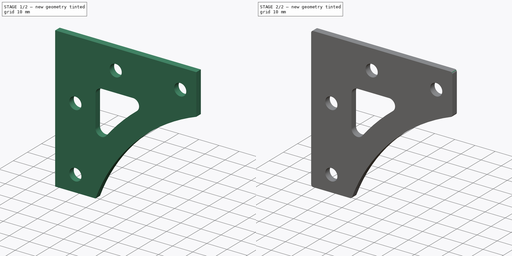
[diagram: build sequence overview — one tinted view per stage of 2, left to right]
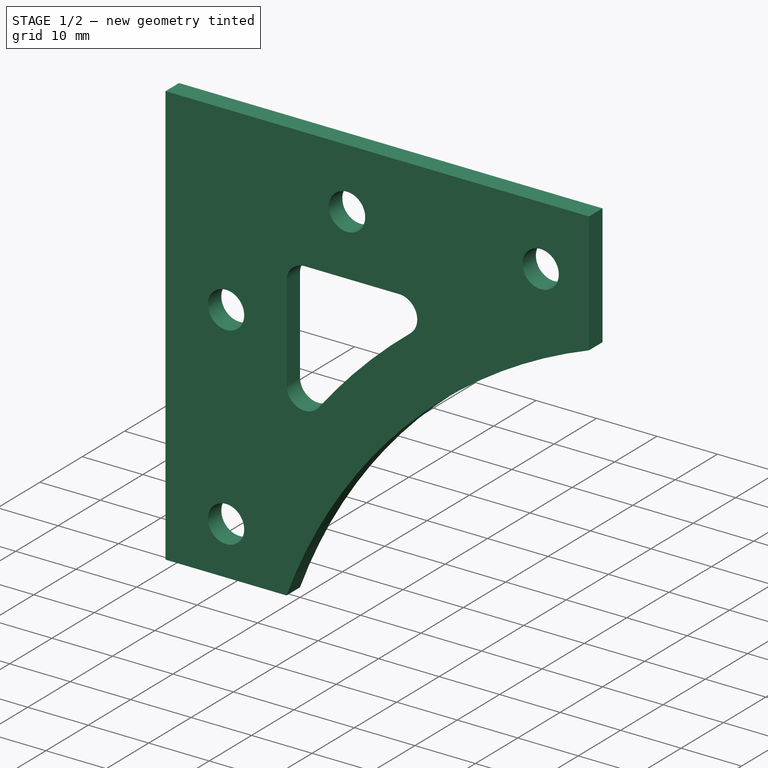
[diagram: stage 1 of 2 — iso view after this stage's code; geometry added in this stage tinted green]
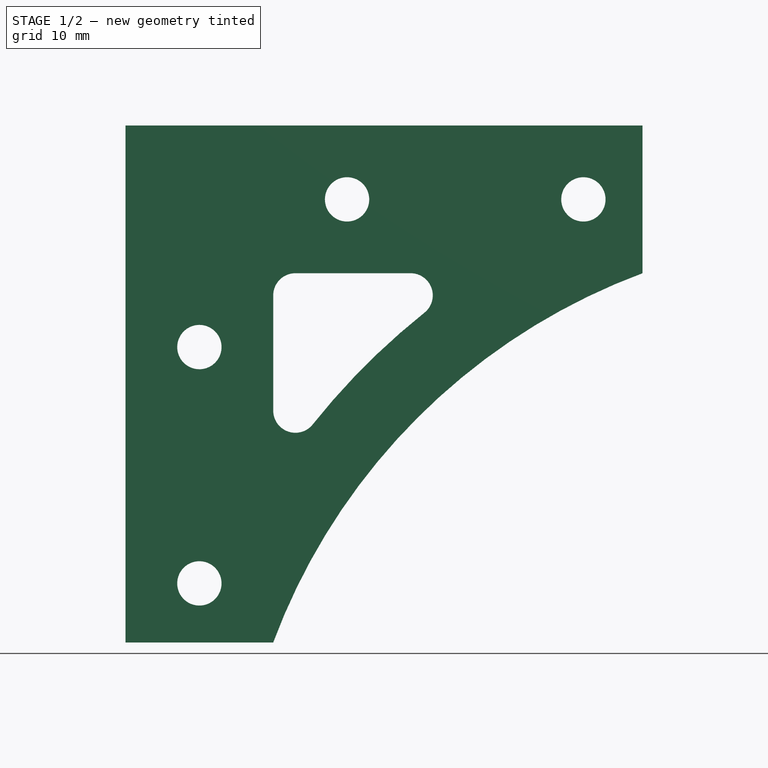
[diagram: stage 1 of 2 — front view after this stage's code; geometry added in this stage tinted green]
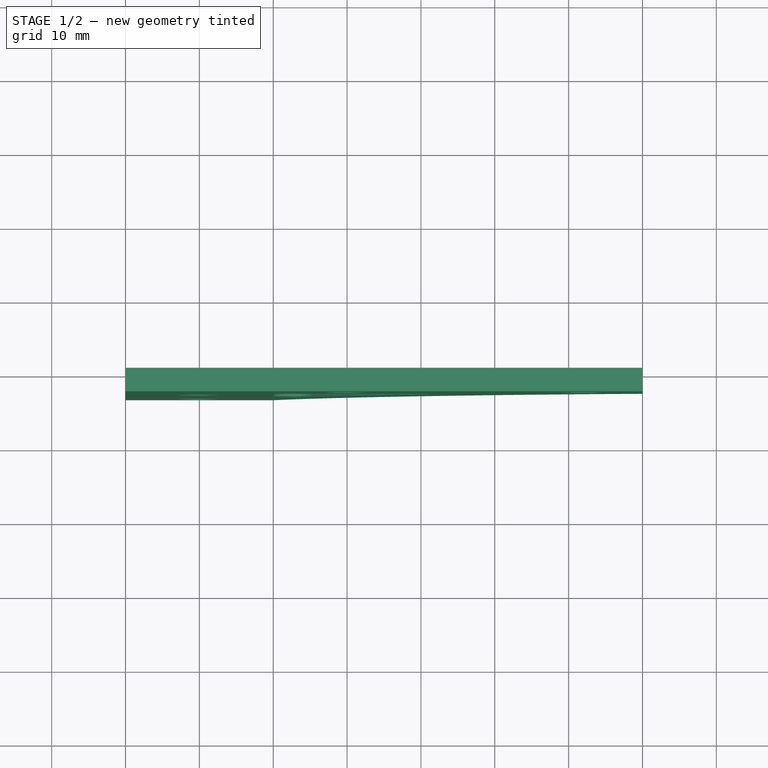
[diagram: stage 1 of 2 — top view after this stage's code; geometry added in this stage tinted green]
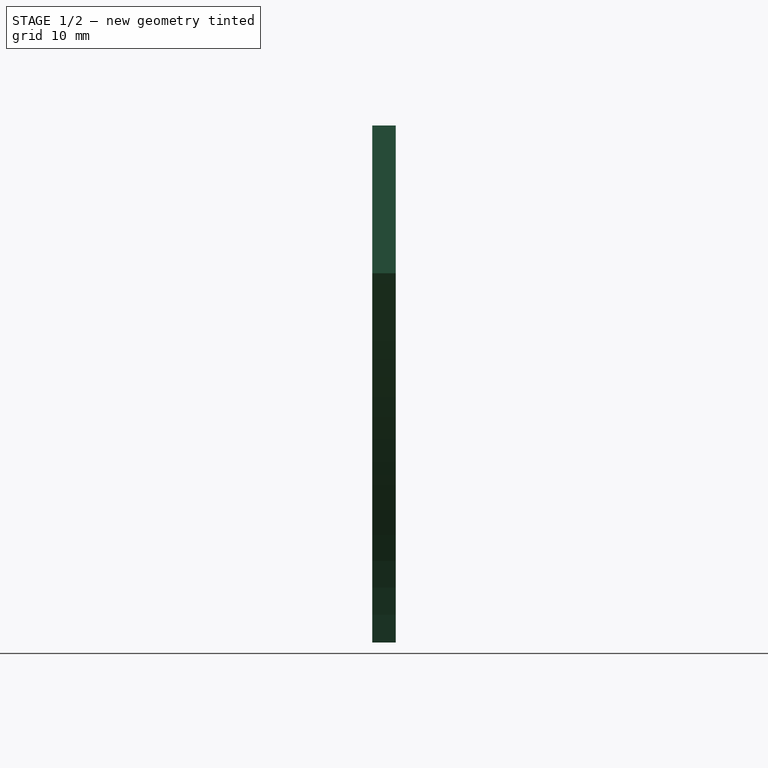
[diagram: stage 1 of 2 — right view after this stage's code; geometry added in this stage tinted green]
FCSTD DOCUMENT  (FreeCAD 0.17R12018 (Git))
Label: corner_bracket_PP-MP0106_revC
License: All rights reserved
LicenseURL: http://en.wikipedia.org/wiki/All_rights_reserved
objects: Drawing::FeatureView×46, Drawing::FeatureViewPart×3, PartDesign::Fillet×2, Drawing::FeaturePage×2, Sketcher::SketchObject×1, PartDesign::Pad×1
note: 5 computed .brp shape members not serialized (recipe doc carries the construction recipe); baked Part::Feature solids carry a one-line shape summary decoded from their .brp

FEATURE [Sketcher::SketchObject] Sketch
  MapMode = 5
  Placement = pos=(0,0,0) rot=(1,0,0;1.5708rad)
  sketch-geometry (15):
    g0: LineSegment StartX=0 StartY=0 StartZ=0 EndX=20 EndY=0 EndZ=0
    g1: LineSegment StartX=70 StartY=50 StartZ=0 EndX=70 EndY=70 EndZ=0
    g2: LineSegment StartX=70 StartY=70 StartZ=0 EndX=0 EndY=70 EndZ=0
    g3: LineSegment StartX=0 StartY=70 StartZ=0 EndX=0 EndY=0 EndZ=0
    g4: LineSegment StartX=47.8932 StartY=50 StartZ=0 EndX=20 EndY=50 EndZ=0
    g5: LineSegment StartX=20 StartY=50 StartZ=0 EndX=20 EndY=22.1068 EndZ=0
    g6: LineSegment [constr] StartX=0 StartY=70 StartZ=0 EndX=39.554 EndY=30.446 EndZ=0
    g7: ArcOfCircle CenterX=99.658 CenterY=-29.658 CenterZ=0 NormalX=0 NormalY=0 NormalZ=1 Radius=95 StartAngle=2.14706 EndAngle=2.56533
    g8: ArcOfCircle CenterX=99.658 CenterY=-29.658 CenterZ=0 NormalX=0 NormalY=0 NormalZ=1 Radius=85 StartAngle=1.92721 EndAngle=2.78518
    g9: LineSegment [constr] StartX=10 StartY=0 StartZ=0 EndX=10 EndY=60 EndZ=0
    g10: LineSegment [constr] StartX=10 StartY=60 StartZ=0 EndX=70 EndY=60 EndZ=0
    g11: Circle CenterX=10 CenterY=40 CenterZ=0 NormalX=0 NormalY=0 NormalZ=1 Radius=3
    g12: Circle CenterX=10 CenterY=8 CenterZ=0 NormalX=0 NormalY=0 NormalZ=1 Radius=3
    g13: Circle CenterX=30 CenterY=60 CenterZ=0 NormalX=0 NormalY=0 NormalZ=1 Radius=3
    g14: Circle CenterX=62 CenterY=60 CenterZ=0 NormalX=0 NormalY=0 NormalZ=1 Radius=3
  constraints (47):
    c: Coincident(g1,g2)
    c: Coincident(g2,g3)
    c: Coincident(g3,g0)
    c: Horizontal(g0)
    c: Horizontal(g2)
    c: Vertical(g1)
    c: Vertical(g3)
    c: Distance(g3) = 70
    c: Coincident(g0,g-1)
    c: DistanceX(g-1,g5) = 20
    c: Vertical(g5)
    c: Coincident(g4,g5)
    c: DistanceY(g2,g4) = -20
    c: Horizontal(g4)
    c: Coincident(g2,g6)
    c: Angle(g3,g6) = 0.785398
    c: DistanceX(g1,g2) = -70
    c: Coincident(g4,g7)
    c: Coincident(g5,g7)
    c: Coincident(g7,g8)
    c: PointOnObject(g6,g8)
    c: Coincident(g8,g1)
    c: Coincident(g8,g0)
    c: DistanceY(g1,g1) = -20
    c: DistanceX(g-1,g0) = 20
    c: Radius(g8) = 85
    c: Radius(g7) = 95
    c: Vertical(g9)
    c: Horizontal(g10)
    c: DistanceX(g-1,g9) = 10
    c: DistanceY(g10,g2) = 10
    c: PointOnObject(g10,g9)
    c: Coincident(g9,g10)
    c: PointOnObject(g10,g1)
    c: PointOnObject(g9,g0)
    c: Radius(g11) = 3
    c: Equal(g11,g12)
    c: Equal(g12,g14)
    c: Equal(g14,g13)
    c: PointOnObject(g11,g9)
    c: PointOnObject(g13,g10)
    c: PointOnObject(g14,g10)
    c: PointOnObject(g12,g9)
    c: DistanceY(g2,g11) = -30
    c: DistanceY(g11,g12) = -32
    c: DistanceX(g13,g2) = -30
    c: DistanceX(g13,g14) = 32
FEATURE [PartDesign::Pad] Pad
  Length = 3.175
  Length2 = 100
  Placement = pos=(0,0,0) rot=(1,0,0;1.5708rad)
  Profile = -> Sketch
  Type = 0
FEATURE [PartDesign::Fillet] Fillet
  Base = -> Pad [Edge20,Edge16,Edge17]
  Placement = pos=(0,0,0) rot=(1,0,0;1.5708rad)
  Radius = 3
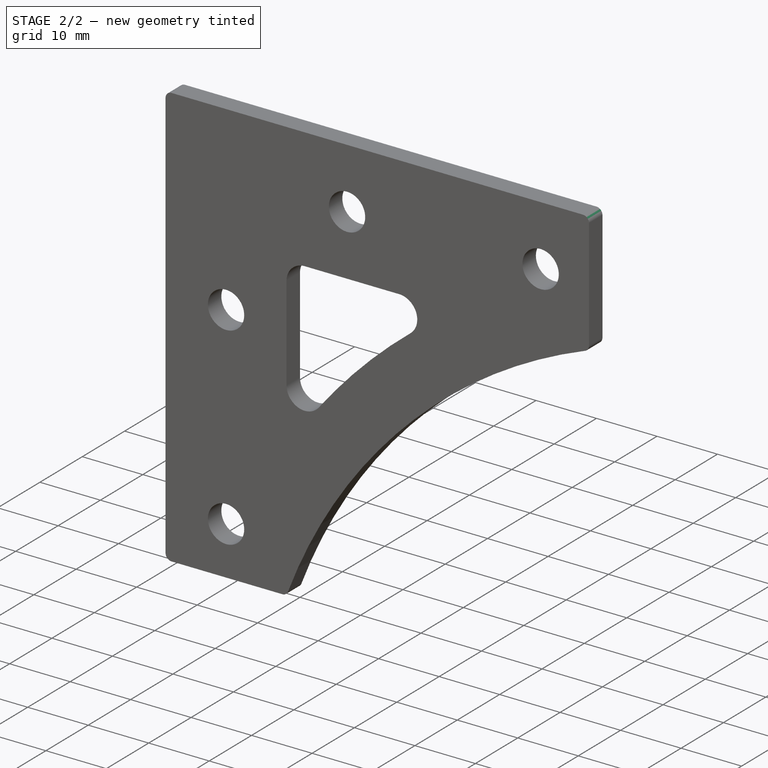
[diagram: stage 2 of 2 — iso view after this stage's code; geometry added in this stage tinted green]
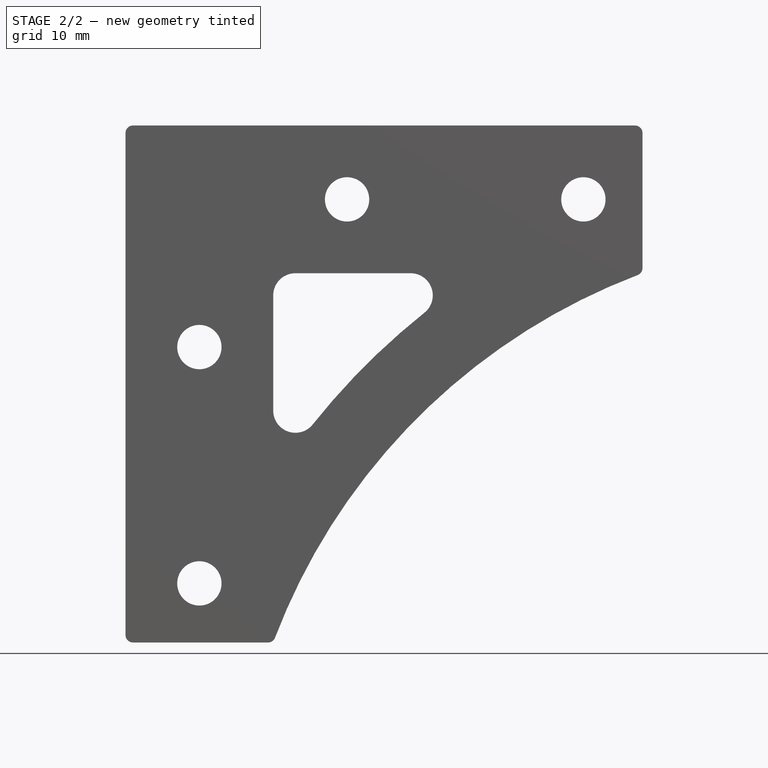
[diagram: stage 2 of 2 — front view after this stage's code; geometry added in this stage tinted green]
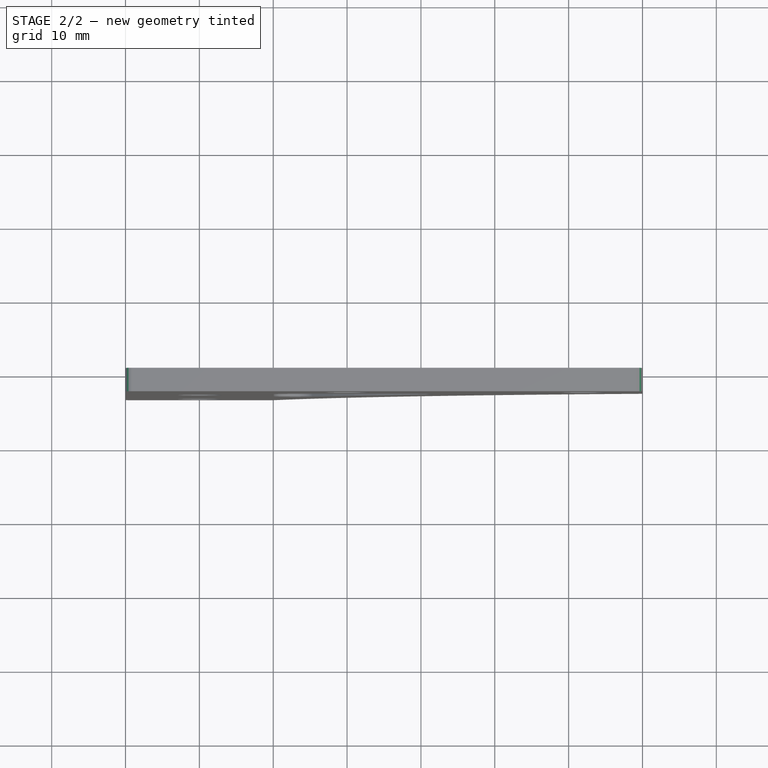
[diagram: stage 2 of 2 — top view after this stage's code; geometry added in this stage tinted green]
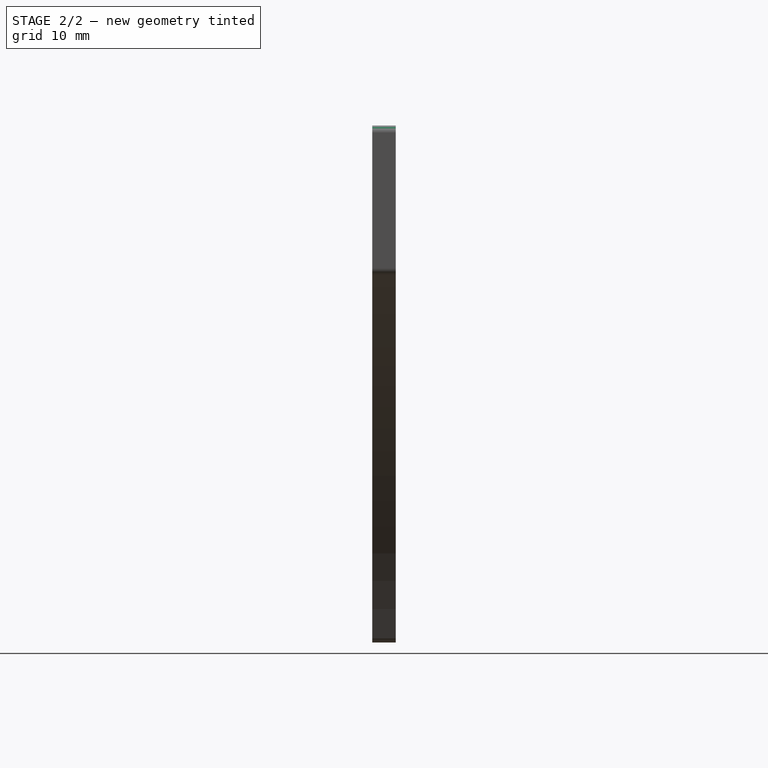
[diagram: stage 2 of 2 — right view after this stage's code; geometry added in this stage tinted green]
FEATURE [PartDesign::Fillet] Fillet001
  Base = -> Fillet [Edge37,Edge38,Edge41,Edge40,Edge39]
  Placement = pos=(0,0,0) rot=(1,0,0;1.5708rad)
  Radius = 1
FEATURE [Drawing::FeatureViewPart] Ortho  label="Ortho_0_0"
  Direction = (0,1,0)
  HiddenWidth = 0.15
  LineWidth = 0.35
  Rotation = 90
  ShowHiddenLines = false
  ShowSmoothLines = false
  Source = -> Fillet001
  Tolerance = 0.05
  ViewResult = <g id="Ortho_0_0"\n   transform="rotate(90,40,40) translate(40,40) scale(1,1)"\n  >\n<g   stroke="rgb(0, 0, 0)"\n   stroke-width="0.35"\n   stroke-linecap="butt"\n   stroke-linejoin="miter"\n   fill="none"\n   transform="scale(1,-1)"\n  >\n<path id= "1" d=" M 50.6917 70 L 69 70 " />\n<path d="M50.6917 70 A1 1 0 0 1 49.7574 69.3565" /><path d="M69 70 A1 1 0 0 0 70 69" /><path d="M49.7574 69.3565 A85 85 0 0 0 0.643511 20.2426" /><path id= "5" d=" M 70 69 L 70 1 " />\n<path d="M0 19.3083 A1 1 0 0 0 0.643511 20.2426" /><path d="M70 1 A1 1 0 0 0 69 -2.22045e-16" /><path id= "8" d=" M 0 1 L 0 19.3083 " />\n<path id= "9" d=" M 69 0 L 1 0 " />\n<path d="M1 -2.22045e-16 A1 1 0 0 0 -2.22045e-16 1" /><path id= "11" d=" M 50 38.6044 L 50 23 " />\n<path d="M50 38.6044 A3 3 0 0 1 44.6533 40.4734" /><path d="M50 23 A3 3 0 0 0 47 20" /><path d="M44.6533 40.4734 A95 95 0 0 0 29.5266 25.3467" /><path id= "15" d=" M 47 20 L 31.3956 20 " />\n<path d="M31.3956 20 A3 3 0 0 0 29.5266 25.3467" /><circle cx ="60" cy ="62" r ="3" /><circle cx ="60" cy ="30" r ="3" /><circle cx ="8" cy ="10" r ="3" /><circle cx ="40" cy ="10" r ="3" /></g>\n</g>
  Visible = true
  X = 40
  Y = 40
FEATURE [Drawing::FeatureViewPart] Ortho001  label="Ortho_1_0"
  Direction = (1,0,0)
  HiddenWidth = 0.15
  LineWidth = 0.35
  Rotation = 90
  ShowHiddenLines = false
  ShowSmoothLines = false
  Source = -> Fillet001
  Tolerance = 0.05
  ViewResult = <blob: 3638 chars omitted>
  Visible = true
  X = 160
  Y = 40
FEATURE [Drawing::FeatureViewPart] View
  Direction = (1,1,1)
  HiddenWidth = 0.15
  LineWidth = 0.35
  Rotation = 0
  Scale = 0.75
  ShowHiddenLines = false
  ShowSmoothLines = false
  Source = -> Fillet001
  Tolerance = 0.05
  ViewResult = <blob: 4070 chars omitted>
  Visible = true
  X = 50
  Y = 160
FEATURE [Drawing::FeatureView] centerLines001
  Rotation = 0
  ViewResult = <g transform="scale(1.000000,1.000000)" stroke="rgb(0,0,255)"  stroke-width="0.300000" > <path d="M 50.000000,80.000000 L 50.000000,78.000000 M 50.000000,76.000000 L 50.000000,75.000000 "/>\n<path d="M 50.000000,80.000000 L 52.000000,80.000000 M 54.000000,80.000000 L 55.000000,80.000000 "/>\n<path d="M 50.000000,80.000000 L 50.000000,82.000000 M 50.000000,84.000000 L 50.000000,85.000000 "/>\n<path d="M 50.000000,80.000000 L 48.000000,80.000000 M 46.000000,80.000000 L 45.000000,80.000000 "/> </g> 
  Visible = true
  X = 0
  Y = 0
FEATURE [Drawing::FeatureView] centerLines002
  Rotation = 0
  ViewResult = <g transform="scale(1.000000,1.000000)" stroke="rgb(0,0,255)"  stroke-width="0.300000" > <path d="M 50.000000,48.000000 L 50.000000,50.000000 "/>\n<path d="M 50.000000,48.000000 L 52.000000,48.000000 M 54.000000,48.000000 L 55.000000,48.000000 "/>\n<path d="M 50.000000,48.000000 L 50.000000,46.000000 "/>\n<path d="M 50.000000,48.000000 L 48.000000,48.000000 M 46.000000,48.000000 L 45.000000,48.000000 "/> </g> 
  Visible = true
  X = 0
  Y = 0
FEATURE [Drawing::FeatureView] centerLines003
  Rotation = 0
  ViewResult = <g transform="scale(1.000000,1.000000)" stroke="rgb(0,0,255)"  stroke-width="0.300000" > <path d="M 70.000000,100.000000 L 70.000000,102.000000 M 70.000000,104.000000 L 70.000000,105.000000 "/>\n<path d="M 70.000000,100.000000 L 72.000000,100.000000 M 74.000000,100.000000 L 75.000000,100.000000 "/>\n<path d="M 70.000000,100.000000 L 70.000000,98.000000 M 70.000000,96.000000 L 70.000000,95.000000 "/>\n<path d="M 70.000000,100.000000 L 68.000000,100.000000 M 66.000000,100.000000 L 65.000000,100.000000 "/> </g> 
  Visible = true
  X = 0
  Y = 0
FEATURE [Drawing::FeatureView] centerLines004
  Rotation = 0
  ViewResult = <g transform="scale(1.000000,1.000000)" stroke="rgb(0,0,255)"  stroke-width="0.300000" > <path d="M 102.000000,100.000000 L 102.000000,102.000000 M 102.000000,104.000000 L 102.000000,105.000000 "/>\n<path d="M 102.000000,100.000000 L 100.000000,100.000000 M 98.000000,100.000000 L 95.000000,100.000000 "/>\n<path d="M 102.000000,100.000000 L 102.000000,98.000000 M 102.000000,96.000000 L 102.000000,95.000000 "/>\n<path d="M 102.000000,100.000000 L 104.000000,100.000000 "/> </g> 
  Visible = true
  X = 0
  Y = 0
FEATURE [Drawing::FeatureView] centerLines005
  Rotation = 0
  ViewResult = <g transform="scale(1.000000,1.000000)" stroke="rgb(0,0,255)"  stroke-width="0.300000" > <path d="M 78.604443,87.000000 L 78.604443,85.000000 "/>\n<path d="M 78.604443,87.000000 L 80.000000,87.000000 "/>\n<path d="M 78.604443,87.000000 L 78.604443,89.000000 "/>\n<path d="M 78.604443,87.000000 L 76.604443,87.000000 "/> </g> 
  Visible = true
  X = 0
  Y = 0
FEATURE [Drawing::FeatureView] centerLines006
  Rotation = 0
  ViewResult = <g transform="scale(1.000000,1.000000)" stroke="rgb(0,0,255)"  stroke-width="0.300000" > <path d="M 63.000000,87.000000 L 63.000000,89.000000 "/>\n<path d="M 63.000000,87.000000 L 65.000000,87.000000 "/>\n<path d="M 63.000000,87.000000 L 63.000000,85.000000 "/>\n<path d="M 63.000000,87.000000 L 61.000000,87.000000 "/> </g> 
  Visible = true
  X = 0
  Y = 0
FEATURE [Drawing::FeatureView] centerLines007
  Rotation = 0
  ViewResult = <g transform="scale(1.000000,1.000000)" stroke="rgb(0,0,255)"  stroke-width="0.300000" > <path d="M 63.000000,71.395557 L 63.000000,73.395557 "/>\n<path d="M 63.000000,71.395557 L 61.000000,71.395557 "/>\n<path d="M 63.000000,71.395557 L 63.000000,70.000000 "/>\n<path d="M 63.000000,71.395557 L 65.000000,71.395557 "/> </g> 
  Visible = true
  X = 0
  Y = 0
FEATURE [Drawing::FeatureView] centerLines008
  Rotation = 0
  ViewResult = <g transform="scale(1.000000,1.000000)" stroke="rgb(0,0,255)"  stroke-width="0.300000" > <path d="M 139.658056,10.341937 L 139.658056,12.341937 M 139.658056,14.341937 L 139.658056,20.000000 "/>\n<path d="M 139.658056,10.341937 L 137.658056,10.341937 M 135.658056,10.341937 L 130.000000,10.341937 "/>\n<path d="M 139.658056,10.341937 L 139.658056,8.341937 M 139.658056,6.341937 L 139.658056,5.000000 "/>\n<path d="M 139.658056,10.341937 L 141.658056,10.341937 M 143.658056,10.341937 L 145.000000,10.341937 "/> </g> 
  Visible = true
  X = 0
  Y = 0
FEATURE [Drawing::FeatureView] dim001
  Rotation = 0
  ViewResult = <g> \n  <line x1="40.000000" y1="111.000000" x2="40.000000" y2="116.000000" style="stroke:rgb(0,0,255);stroke-width:0.20" />\n<line x1="50.000000" y1="85.000000" x2="50.000000" y2="116.000000" style="stroke:rgb(0,0,255);stroke-width:0.20" />\n<line x1="40.000000" y1="115.000000" x2="50.000000" y2="115.000000" style="stroke:rgb(0,0,255);stroke-width:0.20" /> \n  <polygon points="50.000000,115.000000 47.000000,114.250000 47.000000,115.000000 47.000000,115.750000" style="fill:rgb(0,0,255);stroke:rgb(0,0,255);stroke-width:0" /><polygon points="40.000000,115.000000 43.000000,115.750000 43.000000,115.000000 43.000000,114.250000" style="fill:rgb(0,0,255);stroke:rgb(0,0,255);stroke-width:0" /> \n  <text x="33.286909" y="116.091535" font-family="Verdana" font-size="3" fill="rgb(0,0,255)" text-anchor="middle"  >2X 10.0</text> </g>
  Visible = true
  X = 0
  Y = 0
FEATURE [Drawing::FeatureView] dim002
  Rotation = 0
  ViewResult = <g> \n  <line x1="40.000000" y1="111.000000" x2="40.000000" y2="121.000000" style="stroke:rgb(0,0,255);stroke-width:0.20" />\n<line x1="60.000000" y1="73.395600" x2="60.000000" y2="121.000000" style="stroke:rgb(0,0,255);stroke-width:0.20" />\n<line x1="40.000000" y1="120.000000" x2="60.000000" y2="120.000000" style="stroke:rgb(0,0,255);stroke-width:0.20" /> \n  <polygon points="60.000000,120.000000 57.000000,119.250000 57.000000,120.000000 57.000000,120.750000" style="fill:rgb(0,0,255);stroke:rgb(0,0,255);stroke-width:0" /><polygon points="40.000000,120.000000 43.000000,120.750000 43.000000,120.000000 43.000000,119.250000" style="fill:rgb(0,0,255);stroke:rgb(0,0,255);stroke-width:0" /> \n  <text x="49.970903" y="119.336904" font-family="Verdana" font-size="3" fill="rgb(0,0,255)" text-anchor="middle"  >2X 20.0</text> </g>
  Visible = true
  X = 0
  Y = 0
FEATURE [Drawing::FeatureView] dim003
  Rotation = 0
  ViewResult = <g> \n  <line x1="40.000000" y1="111.000000" x2="40.000000" y2="126.000000" style="stroke:rgb(0,0,255);stroke-width:0.20" />\n<line x1="63.000000" y1="91.000000" x2="63.000000" y2="126.000000" style="stroke:rgb(0,0,255);stroke-width:0.20" />\n<line x1="40.000000" y1="125.000000" x2="63.000000" y2="125.000000" style="stroke:rgb(0,0,255);stroke-width:0.20" /> \n  <polygon points="63.000000,125.000000 60.000000,124.250000 60.000000,125.000000 60.000000,125.750000" style="fill:rgb(0,0,255);stroke:rgb(0,0,255);stroke-width:0" /><polygon points="40.000000,125.000000 43.000000,125.750000 43.000000,125.000000 43.000000,124.250000" style="fill:rgb(0,0,255);stroke:rgb(0,0,255);stroke-width:0" /> \n  <text x="49.422257" y="124.660612" font-family="Verdana" font-size="3" fill="rgb(0,0,255)" text-anchor="middle"  >2X 23.0</text> </g>
  Visible = true
  X = 0
  Y = 0
FEATURE [Drawing::FeatureView] dim004
  Rotation = 0
  ViewResult = <g> \n  <line x1="40.000000" y1="111.000000" x2="40.000000" y2="131.000000" style="stroke:rgb(0,0,255);stroke-width:0.20" />\n<line x1="70.000000" y1="105.000000" x2="70.000000" y2="131.000000" style="stroke:rgb(0,0,255);stroke-width:0.20" />\n<line x1="40.000000" y1="130.000000" x2="70.000000" y2="130.000000" style="stroke:rgb(0,0,255);stroke-width:0.20" /> \n  <polygon points="70.000000,130.000000 67.000000,129.250000 67.000000,130.000000 67.000000,130.750000" style="fill:rgb(0,0,255);stroke:rgb(0,0,255);stroke-width:0" /><polygon points="40.000000,130.000000 43.000000,130.750000 43.000000,130.000000 43.000000,129.250000" style="fill:rgb(0,0,255);stroke:rgb(0,0,255);stroke-width:0" /> \n  <text x="47.815029" y="129.783650" font-family="Verdana" font-size="3" fill="rgb(0,0,255)" text-anchor="middle"  >30.0</text> </g>
  Visible = true
  X = 0
  Y = 0
FEATURE [Drawing::FeatureView] dim005
  Rotation = 0
  ViewResult = <g> \n  <line x1="40.000000" y1="111.000000" x2="40.000000" y2="136.000000" style="stroke:rgb(0,0,255);stroke-width:0.20" />\n<line x1="78.604443" y1="91.000000" x2="78.604443" y2="136.000000" style="stroke:rgb(0,0,255);stroke-width:0.20" />\n<line x1="40.000000" y1="135.000000" x2="78.604443" y2="135.000000" style="stroke:rgb(0,0,255);stroke-width:0.20" /> \n  <polygon points="78.604443,135.000000 75.604443,134.250000 75.604443,135.000000 75.604443,135.750000" style="fill:rgb(0,0,255);stroke:rgb(0,0,255);stroke-width:0" /><polygon points="40.000000,135.000000 43.000000,135.750000 43.000000,135.000000 43.000000,134.250000" style="fill:rgb(0,0,255);stroke:rgb(0,0,255);stroke-width:0" /> \n  <text x="48.015933" y="134.605334" font-family="Verdana" font-size="3" fill="rgb(0,0,255)" text-anchor="middle"  >38.6</text> </g>
  Visible = true
  X = 0
  Y = 0
FEATURE [Drawing::FeatureView] dim006
  Rotation = 0
  ViewResult = <g> \n  <line x1="40.000000" y1="111.000000" x2="40.000000" y2="141.000000" style="stroke:rgb(0,0,255);stroke-width:0.20" />\n<line x1="102.000000" y1="105.000000" x2="102.000000" y2="141.000000" style="stroke:rgb(0,0,255);stroke-width:0.20" />\n<line x1="40.000000" y1="140.000000" x2="102.000000" y2="140.000000" style="stroke:rgb(0,0,255);stroke-width:0.20" /> \n  <polygon points="102.000000,140.000000 99.000000,139.250000 99.000000,140.000000 99.000000,140.750000" style="fill:rgb(0,0,255);stroke:rgb(0,0,255);stroke-width:0" /><polygon points="40.000000,140.000000 43.000000,140.750000 43.000000,140.000000 43.000000,139.250000" style="fill:rgb(0,0,255);stroke:rgb(0,0,255);stroke-width:0" /> \n  <text x="48.015933" y="139.728373" font-family="Verdana" font-size="3" fill="rgb(0,0,255)" text-anchor="middle"  >62.0</text> </g>
  Visible = true
  X = 0
  Y = 0
FEATURE [Drawing::FeatureView] dim007
  Rotation = 0
  ViewResult = <g> \n  <line x1="40.000000" y1="111.000000" x2="40.000000" y2="146.000000" style="stroke:rgb(0,0,255);stroke-width:0.20" />\n<line x1="110.000000" y1="111.000000" x2="110.000000" y2="146.000000" style="stroke:rgb(0,0,255);stroke-width:0.20" />\n<line x1="40.000000" y1="145.000000" x2="110.000000" y2="145.000000" style="stroke:rgb(0,0,255);stroke-width:0.20" /> \n  <polygon points="110.000000,145.000000 107.000000,144.250000 107.000000,145.000000 107.000000,145.750000" style="fill:rgb(0,0,255);stroke:rgb(0,0,255);stroke-width:0" /><polygon points="40.000000,145.000000 43.000000,145.750000 43.000000,145.000000 43.000000,144.250000" style="fill:rgb(0,0,255);stroke:rgb(0,0,255);stroke-width:0" /> \n  <text x="47.714577" y="144.550056" font-family="Verdana" font-size="3" fill="rgb(0,0,255)" text-anchor="middle"  >70.0</text> </g>
  Visible = true
  X = 0
  Y = 0
FEATURE [Drawing::FeatureView] dim008
  Rotation = 0
  ViewResult = <g> \n  <line x1="39.000000" y1="110.000000" x2="34.000000" y2="110.000000" style="stroke:rgb(0,0,255);stroke-width:0.20" />\n<line x1="65.000000" y1="100.000000" x2="34.000000" y2="100.000000" style="stroke:rgb(0,0,255);stroke-width:0.20" />\n<line x1="35.000000" y1="110.000000" x2="35.000000" y2="100.000000" style="stroke:rgb(0,0,255);stroke-width:0.20" /> \n  <polygon points="35.000000,100.000000 34.250000,103.000000 35.000000,103.000000 35.750000,103.000000" style="fill:rgb(0,0,255);stroke:rgb(0,0,255);stroke-width:0" /><polygon points="35.000000,110.000000 35.750000,107.000000 35.000000,107.000000 34.250000,107.000000" style="fill:rgb(0,0,255);stroke:rgb(0,0,255);stroke-width:0" /> \n  <text x="33.928806" y="100.777723" font-family="Verdana" font-size="3" fill="rgb(0,0,255)" text-anchor="middle" transform="rotate(-90.000000 33.928806,100.777723)" >2X 10.0</text> </g>
  Visible = true
  X = 0
  Y = 0
FEATURE [Drawing::FeatureView] dim009
  Rotation = 0
  ViewResult = <g> \n  <line x1="39.000000" y1="110.000000" x2="29.000000" y2="110.000000" style="stroke:rgb(0,0,255);stroke-width:0.20" />\n<line x1="61.000000" y1="90.000000" x2="29.000000" y2="90.000000" style="stroke:rgb(0,0,255);stroke-width:0.20" />\n<line x1="30.000000" y1="110.000000" x2="30.000000" y2="90.000000" style="stroke:rgb(0,0,255);stroke-width:0.20" /> \n  <polygon points="30.000000,90.000000 29.250000,93.000000 30.000000,93.000000 30.750000,93.000000" style="fill:rgb(0,0,255);stroke:rgb(0,0,255);stroke-width:0" /><polygon points="30.000000,110.000000 30.750000,107.000000 30.000000,107.000000 29.250000,107.000000" style="fill:rgb(0,0,255);stroke:rgb(0,0,255);stroke-width:0" /> \n  <text x="29.343832" y="100.410925" font-family="Verdana" font-size="3" fill="rgb(0,0,255)" text-anchor="middle" transform="rotate(-90.000000 29.343832,100.410925)" >2X 20.0</text> </g>
  Visible = true
  X = 0
  Y = 0
FEATURE [Drawing::FeatureView] dim010
  Rotation = 0
  ViewResult = <g> \n  <line x1="39.000000" y1="110.000000" x2="24.000000" y2="110.000000" style="stroke:rgb(0,0,255);stroke-width:0.20" />\n<line x1="59.000000" y1="87.000000" x2="24.000000" y2="87.000000" style="stroke:rgb(0,0,255);stroke-width:0.20" />\n<line x1="25.000000" y1="110.000000" x2="25.000000" y2="87.000000" style="stroke:rgb(0,0,255);stroke-width:0.20" /> \n  <polygon points="25.000000,87.000000 24.250000,90.000000 25.000000,90.000000 25.750000,90.000000" style="fill:rgb(0,0,255);stroke:rgb(0,0,255);stroke-width:0" /><polygon points="25.000000,110.000000 25.750000,107.000000 25.000000,107.000000 24.250000,107.000000" style="fill:rgb(0,0,255);stroke:rgb(0,0,255);stroke-width:0" /> \n  <text x="24.300361" y="102.978510" font-family="Verdana" font-size="3" fill="rgb(0,0,255)" text-anchor="middle" transform="rotate(-90.000000 24.300361,102.978510)" >23.0</text> </g>
  Visible = true
  X = 0
  Y = 0
FEATURE [Drawing::FeatureView] dim011
  Rotation = 0
  ViewResult = <g> \n  <line x1="39.000000" y1="110.000000" x2="19.000000" y2="110.000000" style="stroke:rgb(0,0,255);stroke-width:0.20" />\n<line x1="45.000000" y1="80.000000" x2="19.000000" y2="80.000000" style="stroke:rgb(0,0,255);stroke-width:0.20" />\n<line x1="20.000000" y1="110.000000" x2="20.000000" y2="80.000000" style="stroke:rgb(0,0,255);stroke-width:0.20" /> \n  <polygon points="20.000000,80.000000 19.250000,83.000000 20.000000,83.000000 20.750000,83.000000" style="fill:rgb(0,0,255);stroke:rgb(0,0,255);stroke-width:0" /><polygon points="20.000000,110.000000 20.750000,107.000000 20.000000,107.000000 19.250000,107.000000" style="fill:rgb(0,0,255);stroke:rgb(0,0,255);stroke-width:0" /> \n  <text x="19.440289" y="102.978510" font-family="Verdana" font-size="3" fill="rgb(0,0,255)" text-anchor="middle" transform="rotate(-90.000000 19.440289,102.978510)" >30.0</text> </g>
  Visible = true
  X = 0
  Y = 0
FEATURE [Drawing::FeatureView] dim012
  Rotation = 0
  ViewResult = <g> \n  <line x1="39.000000" y1="110.000000" x2="14.000000" y2="110.000000" style="stroke:rgb(0,0,255);stroke-width:0.20" />\n<line x1="59.000000" y1="71.395557" x2="14.000000" y2="71.395557" style="stroke:rgb(0,0,255);stroke-width:0.20" />\n<line x1="15.000000" y1="110.000000" x2="15.000000" y2="71.395557" style="stroke:rgb(0,0,255);stroke-width:0.20" /> \n  <polygon points="15.000000,71.395557 14.250000,74.395557 15.000000,74.395557 15.750000,74.395557" style="fill:rgb(0,0,255);stroke:rgb(0,0,255);stroke-width:0" /><polygon points="15.000000,110.000000 15.750000,107.000000 15.000000,107.000000 14.250000,107.000000" style="fill:rgb(0,0,255);stroke:rgb(0,0,255);stroke-width:0" /> \n  <text x="14.213419" y="103.070210" font-family="Verdana" font-size="3" fill="rgb(0,0,255)" text-anchor="middle" transform="rotate(-90.000000 14.213419,103.070210)" >38.6</text> </g>
  Visible = true
  X = 0
  Y = 0
FEATURE [Drawing::FeatureView] dim013
  Rotation = 0
  ViewResult = <g> \n  <line x1="111.000000" y1="110.000000" x2="116.000000" y2="110.000000" style="stroke:rgb(0,0,255);stroke-width:0.20" />\n<line x1="57.000000" y1="48.000000" x2="116.000000" y2="48.000000" style="stroke:rgb(0,0,255);stroke-width:0.20" />\n<line x1="115.000000" y1="110.000000" x2="115.000000" y2="48.000000" style="stroke:rgb(0,0,255);stroke-width:0.20" /> \n  <polygon points="115.000000,48.000000 114.250000,51.000000 115.000000,51.000000 115.750000,51.000000" style="fill:rgb(0,0,255);stroke:rgb(0,0,255);stroke-width:0" /><polygon points="115.000000,110.000000 115.750000,107.000000 115.000000,107.000000 114.250000,107.000000" style="fill:rgb(0,0,255);stroke:rgb(0,0,255);stroke-width:0" /> \n  <text x="114.165846" y="75.193569" font-family="Verdana" font-size="3" fill="rgb(0,0,255)" text-anchor="middle" transform="rotate(-90.000000 114.165846,75.193569)" >62.0</text> </g>
  Visible = true
  X = 0
  Y = 0
FEATURE [Drawing::FeatureView] dim014
  Rotation = 0
  ViewResult = <g> \n  <line x1="111.000000" y1="110.000000" x2="121.000000" y2="110.000000" style="stroke:rgb(0,0,255);stroke-width:0.20" />\n<line x1="61.308300" y1="40.000000" x2="121.000000" y2="40.000000" style="stroke:rgb(0,0,255);stroke-width:0.20" />\n<line x1="120.000000" y1="110.000000" x2="120.000000" y2="40.000000" style="stroke:rgb(0,0,255);stroke-width:0.20" /> \n  <polygon points="120.000000,40.000000 119.250000,43.000000 120.000000,43.000000 120.750000,43.000000" style="fill:rgb(0,0,255);stroke:rgb(0,0,255);stroke-width:0" /><polygon points="120.000000,110.000000 120.750000,107.000000 120.000000,107.000000 119.250000,107.000000" style="fill:rgb(0,0,255);stroke:rgb(0,0,255);stroke-width:0" /> \n  <text x="119.362150" y="76.034148" font-family="Verdana" font-size="3" fill="rgb(0,0,255)" text-anchor="middle" transform="rotate(-90.000000 119.362150,76.034148)" >70.0</text> </g>
  Visible = true
  X = 0
  Y = 0
FEATURE [Drawing::FeatureView] dim015
  Rotation = 0
  ViewResult = <g>  <circle cx ="139.658056" cy ="10.341937" r="0.500000" stroke="none" fill="rgb(0,0,255)" /> \n<line x1="70.000000" y1="60.000000" x2="139.658056" y2="10.341937" style="stroke:rgb(0,0,255);stroke-width:0.20" />\n<polygon points="70.444830,59.682888 73.323011,58.552148 72.887650,57.941443 72.452289,57.330738" style="fill:rgb(0,0,255);stroke:rgb(0,0,255);stroke-width:0" />\n<line x1="70.000000" y1="60.000000" x2="95.000000" y2="60.000000" style="stroke:rgb(0,0,255);stroke-width:0.20" />\n<text x="82.500000" y="58.000000" font-family="Verdana" font-size="3" fill="rgb(0,0,255)" text-anchor="middle"  >R85.0</text> </g>
  Visible = true
  X = 0
  Y = 0
FEATURE [Drawing::FeatureView] dim017
  Rotation = 0
  ViewResult = <g>  <circle cx ="63.000000" cy ="71.395557" r="0.500000" stroke="none" fill="rgb(0,0,255)" /> \n<line x1="30.000000" y1="55.000000" x2="63.000000" y2="71.395557" style="stroke:rgb(0,0,255);stroke-width:0.20" />\n<polygon points="60.313326,70.060723 57.960360,68.054220 57.626652,68.725889 57.292943,69.397557" style="fill:rgb(0,0,255);stroke:rgb(0,0,255);stroke-width:0" />\n<line x1="30.000000" y1="55.000000" x2="20.000000" y2="55.000000" style="stroke:rgb(0,0,255);stroke-width:0.20" />\n<text x="25.000000" y="53.000000" font-family="Verdana" font-size="3" fill="rgb(0,0,255)" text-anchor="middle"  >3X R3.0</text> </g>
  Visible = true
  X = 0
  Y = 0
FEATURE [Drawing::FeatureView] dim018
  Rotation = 0
  ViewResult = <g>  <circle cx ="50.000000" cy ="48.000000" r="0.500000" stroke="none" fill="rgb(0,0,255)" /> \n<line x1="45.000000" y1="30.000000" x2="50.802932" y2="50.890554" style="stroke:rgb(0,0,255);stroke-width:0.20" />\n<polygon points="49.197068,45.109446 49.116775,42.018160 48.394137,42.218893 47.671498,42.419625" style="fill:rgb(0,0,255);stroke:rgb(0,0,255);stroke-width:0" />\n<polygon points="50.802932,50.890554 50.883225,53.981840 51.605863,53.781107 52.328502,53.580375" style="fill:rgb(0,0,255);stroke:rgb(0,0,255);stroke-width:0" />\n<line x1="45.000000" y1="30.000000" x2="25.000000" y2="30.000000" style="stroke:rgb(0,0,255);stroke-width:0.20" />\n<text x="35.000000" y="28.000000" font-family="Verdana" font-size="3" fill="rgb(0,0,255)" text-anchor="middle"  >4X Ø6.0 THRU</text> </g>
  Visible = true
  X = 0
  Y = 0
FEATURE [Drawing::FeatureView] dimText001
  Rotation = 0
  ViewResult = <g> <text x="155.845326" y="27.381316" font-family="inherit" font-size="3" fill="rgb(0,0,255)" text-anchor="inherit" transform="rotate(0.000000 155.845326,27.381316)" >[.125"]</text> </g>
  Visible = true
  X = 0
  Y = 0
FEATURE [Drawing::FeatureView] dimText002
  Rotation = 0
  ViewResult = <g> <text x="185.000000" y="40.000000" font-family="inherit" font-size="5" fill="rgb(0,0,0)" text-anchor="inherit" transform="rotate(0.000000 185.000000,40.000000)" >Notes:</text> </g>
  Visible = true
  X = 0
  Y = 0
FEATURE [Drawing::FeatureView] dimText003
  Rotation = 0
  ViewResult = <g> <text x="185.000000" y="45.000000" font-family="inherit" font-size="3" fill="rgb(0,0,0)" text-anchor="inherit" transform="rotate(0.000000 185.000000,45.000000)" >1. Parts must be R0HS compliant</text> </g>
  Visible = true
  X = 0
  Y = 0
FEATURE [Drawing::FeatureView] dimText004
  Rotation = 0
  ViewResult = <g> <text x="185.000000" y="50.000000" font-family="inherit" font-size="3" fill="rgb(0,0,0)" text-anchor="inherit" transform="rotate(0.000000 185.000000,50.000000)" >2. Material: 5052 H-32 Aluminum</text> </g>
  Visible = true
  X = 0
  Y = 0
FEATURE [Drawing::FeatureView] dimText005
  Rotation = 0
  ViewResult = <g> <text x="185.000000" y="55.000000" font-family="inherit" font-size="3" fill="rgb(0,0,0)" text-anchor="inherit" transform="rotate(0.000000 185.000000,55.000000)" >3. Break all sharp edges prior to powder coat</text> </g>
  Visible = true
  X = 0
  Y = 0
FEATURE [Drawing::FeatureView] dimText006
  Rotation = 0
  ViewResult = <g> <text x="185.000000" y="60.000000" font-family="inherit" font-size="3" fill="rgb(0,0,0)" text-anchor="inherit" transform="rotate(0.000000 185.000000,60.000000)" >4. Part is to be powder coated with Cardinal</text> </g>
  Visible = true
  X = 0
  Y = 0
FEATURE [Drawing::FeatureView] dimText007
  Rotation = 0
  ViewResult = <g> <text x="187.500000" y="65.000000" font-family="inherit" font-size="3" fill="rgb(0,0,0)" text-anchor="inherit"  >color C241-BK109. Coating thickness:</text> </g>
  Visible = true
  X = 0
  Y = 0
FEATURE [Drawing::FeatureView] dim020
  Rotation = 0
  ViewResult = <g>  <circle cx ="59.308300" cy ="41.000000" r="0.500000" stroke="none" fill="rgb(0,0,255)" /> \n<line x1="70.000000" y1="30.000000" x2="59.308300" y2="41.000000" style="stroke:rgb(0,0,255);stroke-width:0.20" />\n<polygon points="60.005287,40.282916 62.634059,38.654402 62.096246,38.131663 61.558433,37.608923" style="fill:rgb(0,0,255);stroke:rgb(0,0,255);stroke-width:0" />\n<line x1="70.000000" y1="30.000000" x2="85.000000" y2="30.000000" style="stroke:rgb(0,0,255);stroke-width:0.20" />\n<text x="77.500000" y="28.000000" font-family="Verdana" font-size="3" fill="rgb(0,0,255)" text-anchor="middle"  >5X R1.0</text> </g>
  Visible = true
  X = 0
  Y = 0
FEATURE [Drawing::FeaturePage] Page
  Template = <path>
FEATURE [Drawing::FeatureView] dim016
  Rotation = 0
  ViewResult = <g>  <circle cx ="139.658052" cy ="10.341948" r="0.500000" stroke="none" fill="rgb(0,0,255)" /> \n<line x1="70.000000" y1="75.000000" x2="139.658052" y2="10.341948" style="stroke:rgb(0,0,255);stroke-width:0.20" />\n<polygon points="70.030498,74.971691 72.739497,73.480443 72.229262,72.930752 71.719028,72.381061" style="fill:rgb(0,0,255);stroke:rgb(0,0,255);stroke-width:0" />\n<line x1="70.000000" y1="75.000000" x2="95.000000" y2="75.000000" style="stroke:rgb(0,0,255);stroke-width:0.20" />\n<text x="92.083819" y="73.787034" font-family="Verdana" font-size="3" fill="rgb(0,0,255)" text-anchor="middle" transform="rotate(0.000000 92.083819,73.787034)" >R95</text> </g>
  Visible = true
  X = 0
  Y = 0
FEATURE [Drawing::FeatureView] dim019
  Rotation = 0
  ViewResult = <g> \n  <line x1="160.000000" y1="38.000000" x2="160.000000" y2="32.750501" style="stroke:rgb(0,0,255);stroke-width:0.20" />\n<line x1="163.175000" y1="38.000000" x2="163.175000" y2="32.750501" style="stroke:rgb(0,0,255);stroke-width:0.20" />\n<line x1="160.000000" y1="33.750501" x2="163.175000" y2="33.750501" style="stroke:rgb(0,0,255);stroke-width:0.20" /> \n  <polygon points="163.175000,33.750501 166.175000,34.500501 166.175000,33.750501 166.175000,33.000501" style="fill:rgb(0,0,255);stroke:rgb(0,0,255);stroke-width:0" /><polygon points="160.000000,33.750501 157.000000,33.000501 157.000000,33.750501 157.000000,34.500501" style="fill:rgb(0,0,255);stroke:rgb(0,0,255);stroke-width:0" /> \n  <text x="161.587500" y="32.750501" font-family="Verdana" font-size="3" fill="rgb(0,0,255)" text-anchor="middle"  >3.175 STK</text> </g>
  Visible = true
  X = 0
  Y = 0
FEATURE [Drawing::FeatureView] dimText008
  Rotation = 0
  ViewResult = <g> <text x="187.500000" y="70.000000" font-family="inherit" font-size="3" fill="rgb(0,0,0)" text-anchor="inherit"  >0.05MM to 0.12MM</text> </g>
  Visible = true
  X = 0
  Y = 0
FEATURE [Drawing::FeatureView] dimText009
  Rotation = 0
  ViewResult = <g> <text x="170.000000" y="135.000000" font-family="inherit" font-size="5" fill="rgb(0,0,0)" text-anchor="inherit"  >Rev</text> </g>
  Visible = true
  X = 0
  Y = 0
FEATURE [Drawing::FeatureView] dimText010
  Rotation = 0
  ViewResult = <g> <text x="185.000000" y="135.000000" font-family="inherit" font-size="5" fill="rgb(0,0,0)" text-anchor="inherit"  >Date</text> </g>
  Visible = true
  X = 0
  Y = 0
FEATURE [Drawing::FeatureView] dimText011
  Rotation = 0
  ViewResult = <g> <text x="205.000000" y="135.000000" font-family="inherit" font-size="5" fill="rgb(0,0,0)" text-anchor="inherit"  >Description</text> </g>
  Visible = true
  X = 0
  Y = 0
FEATURE [Drawing::FeatureView] dimText012
  Rotation = 0
  ViewResult = <g> <text x="170.000000" y="140.000000" font-family="inherit" font-size="3" fill="rgb(0,0,0)" text-anchor="inherit"  >B</text> </g>
  Visible = true
  X = 0
  Y = 0
FEATURE [Drawing::FeatureView] dimText013
  Rotation = 0
  ViewResult = <g> <text x="185.000000" y="140.000000" font-family="inherit" font-size="3" fill="rgb(0,0,0)" text-anchor="inherit"  >10.25.17</text> </g>
  Visible = true
  X = 0
  Y = 0
FEATURE [Drawing::FeatureView] dimText014
  Rotation = 0
  ViewResult = <g> <text x="205.000000" y="140.000000" font-family="inherit" font-size="3" fill="rgb(0,0,0)" text-anchor="inherit"  >Changed powder coat thickness tolerance</text> </g>
  Visible = true
  X = 0
  Y = 0
FEATURE [Drawing::FeatureView] dimText015
  Rotation = 0
  ViewResult = <g> <text x="185.000000" y="75.000000" font-family="inherit" font-size="3" fill="rgb(0,0,0)" text-anchor="inherit"  >5. Edge break no greater than R1mm.</text> </g>
  Visible = true
  X = 0
  Y = 0
FEATURE [Drawing::FeatureView] dimText016
  Rotation = 0
  ViewResult = <g> <text x="170.000000" y="145.000000" font-family="inherit" font-size="3" fill="rgb(0,0,0)" text-anchor="inherit" transform="rotate(0.000000 170.000000,145.000000)" >C</text> </g>
  Visible = true
  X = 0
  Y = 0
FEATURE [Drawing::FeatureView] dimText017
  Rotation = 0
  ViewResult = <g> <text x="185.000000" y="145.000000" font-family="inherit" font-size="3" fill="rgb(0,0,0)" text-anchor="inherit" transform="rotate(0.000000 185.000000,145.000000)" >12.8.17</text> </g>
  Visible = true
  X = 0
  Y = 0
FEATURE [Drawing::FeatureView] dimText018
  Rotation = 0
  ViewResult = <g> <text x="205.000000" y="145.000000" font-family="inherit" font-size="3" fill="rgb(0,0,0)" text-anchor="inherit" transform="rotate(0.000000 205.000000,145.000000)" >Added note 5.</text> </g>
  Visible = true
  X = 0
  Y = 0
FEATURE [Drawing::FeaturePage] Page001
  EditableTexts = BAM | 9/17/15 | 1:1 | Corner Bracket v2.0 | C | PP-MP0106 | 1 of 1 | See Notes
  Group = -> [Ortho,Ortho001,View,centerLines001,centerLines002,centerLines003,centerLines004,centerLines005,centerLines006,centerLines007,centerLines008,dim001,dim002,dim003,dim004,dim005,dim006,dim007,dim008,dim009,dim010,dim011,dim012,dim013,dim014,dim015,dim017,dim018,dimText001,dimText002,dimText003,dimText004,dimText005,dimText006,dimText007,dim020,dim016,dim019,dimText008,dimText009,dimText010,+8 more]
  Template = <userpath>/shared-j/Documents/R&D/titleblocks/A4_Landscape_Aleph.svg
note: 1 file-system path scrubbed to <path> (originals preserved in the JSON sidecar)
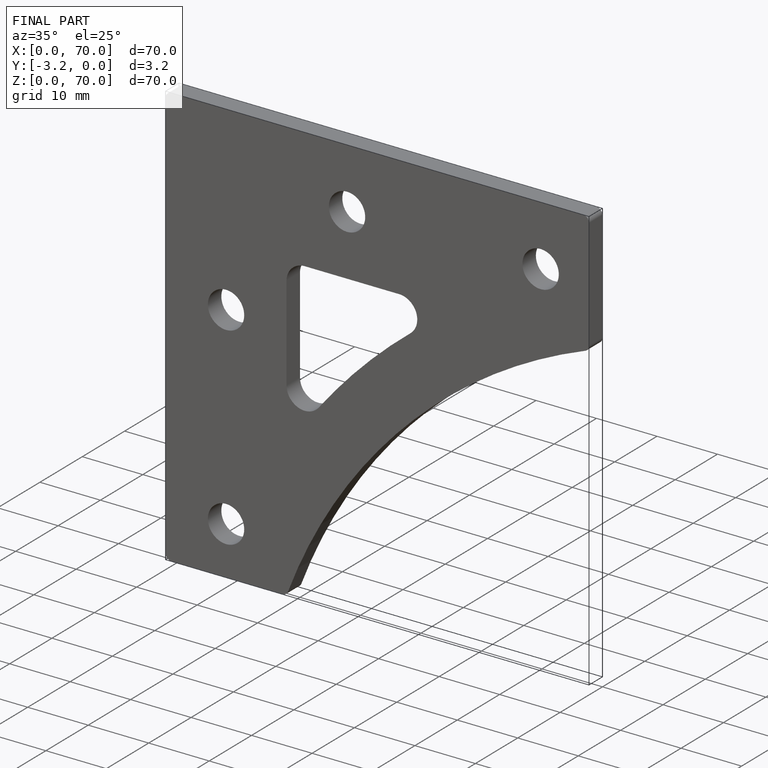
[diagram: finished part — iso view with bounding-box wireframe]
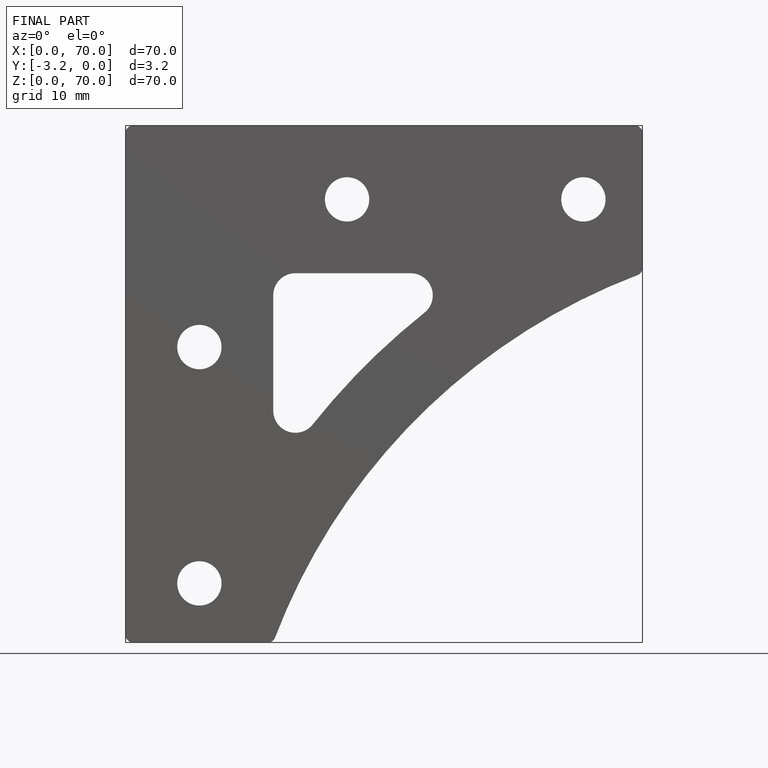
[diagram: finished part — front view with bounding-box wireframe]
